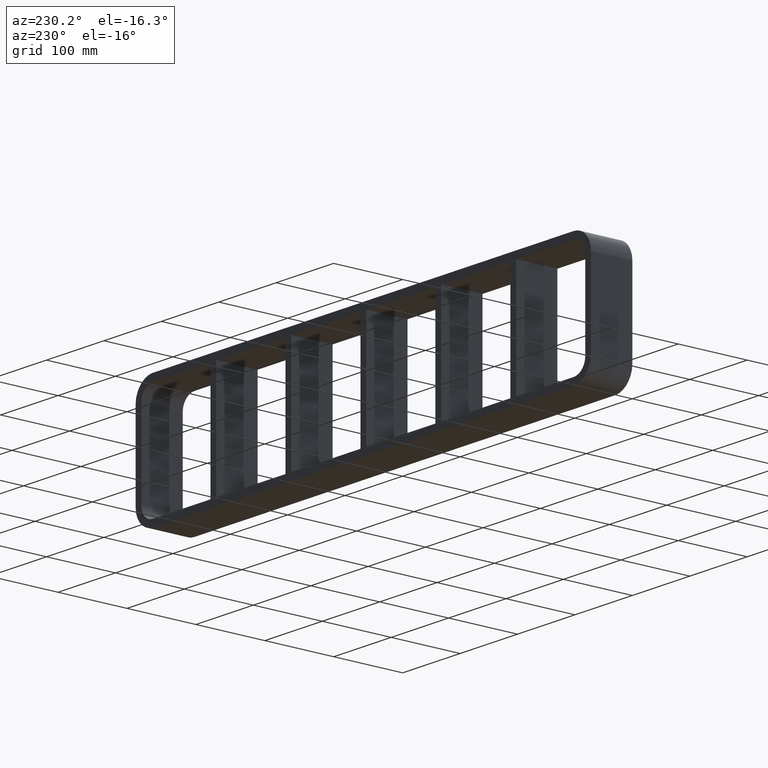
[diagram: clean part render]
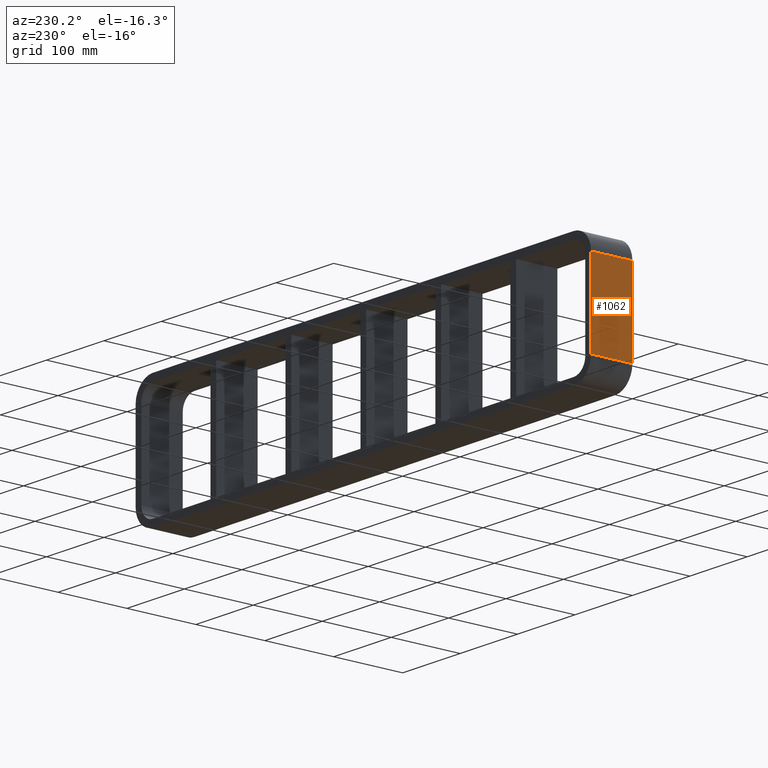
[diagram: same view with one face highlighted and labeled with its STEP entity id]
A machine part, auxiliary view. The second image highlights one B-rep face of the part: STEP entity #1062.
In plain terms, the highlighted planar face has unit normal (-1, 0, 0).
Its self-contained STEP definition (entity closure, byte-faithful):
#841=CARTESIAN_POINT('',(-396.50000000000006,-3.0,59.750000000000014));
#842=VERTEX_POINT('',#841);
#850=CARTESIAN_POINT('',(-396.50000000000006,-3.0,-59.750000000000014));
#851=VERTEX_POINT('',#850);
#852=CARTESIAN_POINT('',(-396.50000000000006,-3.0,59.750000000000014));
#853=DIRECTION('',(0.0,0.0,-1.0));
#854=VECTOR('',#853,119.50000000000003);
#855=LINE('',#852,#854);
#856=EDGE_CURVE('',#842,#851,#855,.T.);
#1012=CARTESIAN_POINT('',(-396.50000000000006,57.0,-59.750000000000014));
#1013=VERTEX_POINT('',#1012);
#1030=CARTESIAN_POINT('',(-396.50000000000006,-3.0,-59.750000000000014));
#1031=DIRECTION('',(0.0,1.0,0.0));
#1032=VECTOR('',#1031,60.0);
#1033=LINE('',#1030,#1032);
#1034=EDGE_CURVE('',#851,#1013,#1033,.T.);
#1039=CARTESIAN_POINT('',(-396.50000000000006,0.0,-89.750000000000014));
#1040=DIRECTION('',(-1.0,0.0,0.0));
#1041=DIRECTION('',(0.0,0.0,1.0));
#1042=AXIS2_PLACEMENT_3D('',#1039,#1040,#1041);
#1043=PLANE('',#1042);
#1044=ORIENTED_EDGE('',*,*,#1034,.F.);
#1045=ORIENTED_EDGE('',*,*,#856,.F.);
#1046=CARTESIAN_POINT('',(-396.50000000000006,57.0,59.750000000000014));
#1047=VERTEX_POINT('',#1046);
#1048=CARTESIAN_POINT('',(-396.50000000000006,57.0,59.750000000000014));
#1049=DIRECTION('',(0.0,-1.0,0.0));
#1050=VECTOR('',#1049,60.0);
#1051=LINE('',#1048,#1050);
#1052=EDGE_CURVE('',#1047,#842,#1051,.T.);
#1053=ORIENTED_EDGE('',*,*,#1052,.F.);
#1054=CARTESIAN_POINT('',(-396.50000000000006,57.0,-59.750000000000014));
#1055=DIRECTION('',(0.0,0.0,1.0));
#1056=VECTOR('',#1055,119.50000000000003);
#1057=LINE('',#1054,#1056);
#1058=EDGE_CURVE('',#1013,#1047,#1057,.T.);
#1059=ORIENTED_EDGE('',*,*,#1058,.F.);
#1060=EDGE_LOOP('',(#1044,#1045,#1053,#1059));
#1061=FACE_OUTER_BOUND('',#1060,.T.);
#1062=ADVANCED_FACE('',(#1061),#1043,.T.);